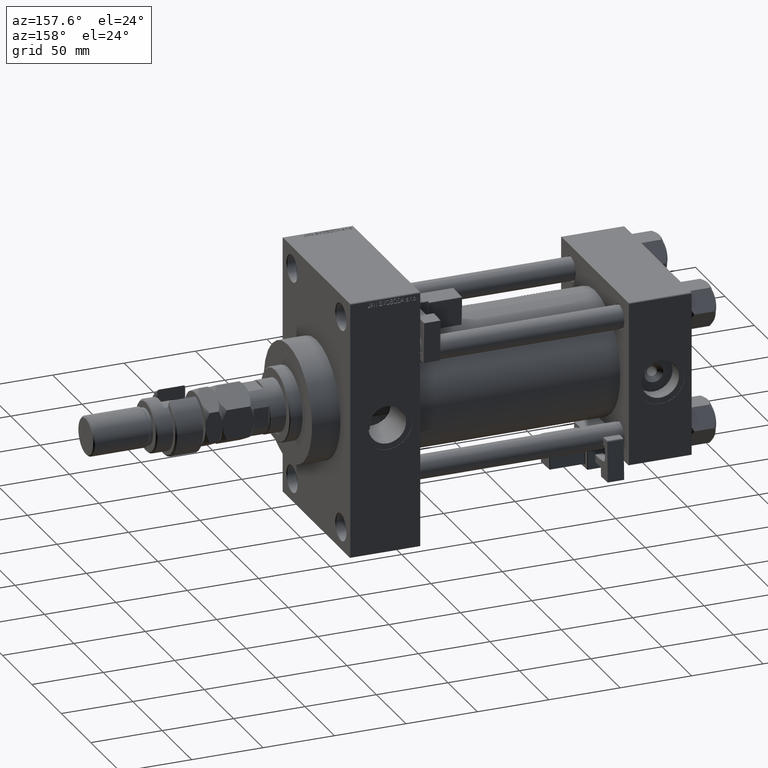
[diagram: clean part render]
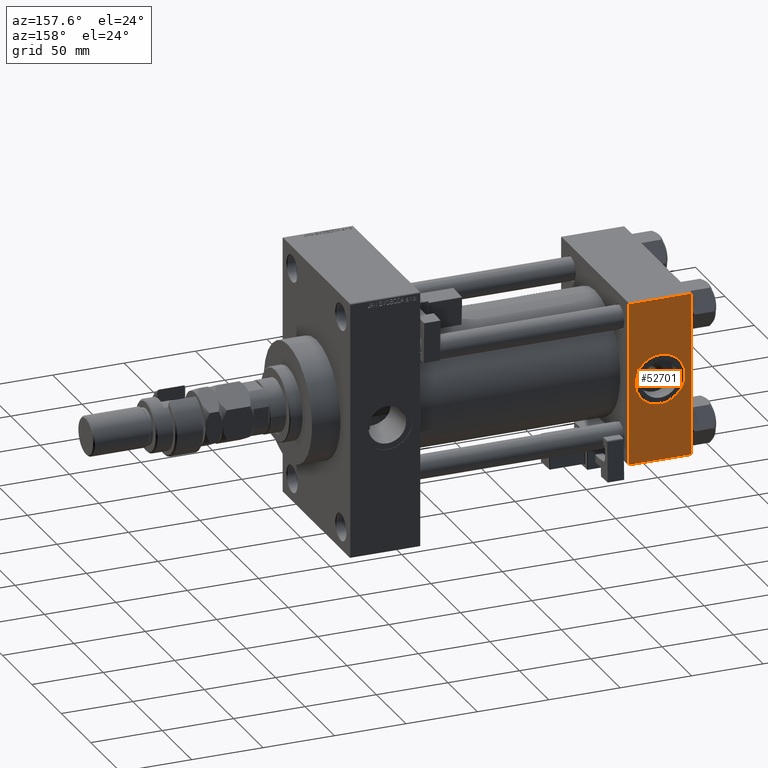
[diagram: same view with one face highlighted and labeled with its STEP entity id]
A machine part, auxiliary view. The second image highlights one B-rep face of the part: STEP entity #52701.
In plain terms, the highlighted planar face has unit normal (0, 1, 0).
Its self-contained STEP definition (entity closure, byte-faithful):
#713 = CARTESIAN_POINT ( 'NONE',  ( 22.00000000000000000, 57.49999999999999289, 0.000000000000000000 ) ) ;
#3839 = DIRECTION ( 'NONE',  ( 0.000000000000000000, 1.000000000000000000, 0.000000000000000000 ) ) ;
#4282 = EDGE_CURVE ( 'NONE', #34594, #9476, #19965, .T. ) ;
#5018 = AXIS2_PLACEMENT_3D ( 'NONE', #30701, #26855, #9758 ) ;
#7879 = VERTEX_POINT ( 'NONE', #43615 ) ;
#8937 = ORIENTED_EDGE ( 'NONE', *, *, #16766, .T. ) ;
#9046 = DIRECTION ( 'NONE',  ( 1.000000000000000000, 0.000000000000000000, 0.000000000000000000 ) ) ;
#9476 = VERTEX_POINT ( 'NONE', #12319 ) ;
#9758 = DIRECTION ( 'NONE',  ( 0.000000000000000000, -0.000000000000000000, 1.000000000000000000 ) ) ;
#10062 = EDGE_LOOP ( 'NONE', ( #16126, #17234 ) ) ;
#11383 = VERTEX_POINT ( 'NONE', #48796 ) ;
#12319 = CARTESIAN_POINT ( 'NONE',  ( 0.000000000000000000, 57.49999999999999289, -57.00000000000000711 ) ) ;
#13144 = DIRECTION ( 'NONE',  ( 0.000000000000000000, 0.000000000000000000, 1.000000000000000000 ) ) ;
#13888 = PLANE ( 'NONE',  #5018 ) ;
#14736 = EDGE_CURVE ( 'NONE', #11383, #9476, #47239, .T. ) ;
#16126 = ORIENTED_EDGE ( 'NONE', *, *, #53140, .F. ) ;
#16766 = EDGE_CURVE ( 'NONE', #47030, #11383, #32755, .T. ) ;
#16946 = CARTESIAN_POINT ( 'NONE',  ( 44.00000000000000000, 57.49999999999999289, -57.00000000000000711 ) ) ;
#17234 = ORIENTED_EDGE ( 'NONE', *, *, #27640, .F. ) ;
#19965 = LINE ( 'NONE', #45588, #52648 ) ;
#23970 = CARTESIAN_POINT ( 'NONE',  ( 22.00000000000000355, 57.49999999999999289, -17.50000000000000000 ) ) ;
#24818 = CARTESIAN_POINT ( 'NONE',  ( 22.00000000000000000, 57.49999999999999289, 0.000000000000000000 ) ) ;
#25083 = ORIENTED_EDGE ( 'NONE', *, *, #14736, .T. ) ;
#26832 = VECTOR ( 'NONE', #38960, 1000.000000000000000 ) ;
#26855 = DIRECTION ( 'NONE',  ( -0.000000000000000000, 1.000000000000000000, 0.000000000000000000 ) ) ;
#27248 = CIRCLE ( 'NONE', #49267, 17.50000000000000000 ) ;
#27640 = EDGE_CURVE ( 'NONE', #45340, #7879, #27248, .T. ) ;
#27795 = VECTOR ( 'NONE', #50688, 1000.000000000000000 ) ;
#30701 = CARTESIAN_POINT ( 'NONE',  ( 44.00000000000000000, 57.49999999999999289, 57.50000000000000711 ) ) ;
#32755 = LINE ( 'NONE', #46004, #27795 ) ;
#33181 = DIRECTION ( 'NONE',  ( 0.000000000000000000, 0.000000000000000000, -1.000000000000000000 ) ) ;
#34293 = CARTESIAN_POINT ( 'NONE',  ( 44.00000000000000000, 57.49999999999999289, 57.00000000000003553 ) ) ;
#34594 = VERTEX_POINT ( 'NONE', #43818 ) ;
#34730 = EDGE_LOOP ( 'NONE', ( #8937, #25083, #40630, #42904 ) ) ;
#36546 = DIRECTION ( 'NONE',  ( 0.000000000000000000, 0.000000000000000000, 1.000000000000000000 ) ) ;
#37990 = CARTESIAN_POINT ( 'NONE',  ( 44.00000000000000000, 57.49999999999999289, 57.00000000000003553 ) ) ;
#38314 = VECTOR ( 'NONE', #9046, 1000.000000000000000 ) ;
#38960 = DIRECTION ( 'NONE',  ( -1.000000000000000000, 0.000000000000000000, 0.000000000000000000 ) ) ;
#38968 = FACE_BOUND ( 'NONE', #10062, .T. ) ;
#40630 = ORIENTED_EDGE ( 'NONE', *, *, #4282, .F. ) ;
#41559 = LINE ( 'NONE', #37990, #38314 ) ;
#42904 = ORIENTED_EDGE ( 'NONE', *, *, #49158, .T. ) ;
#43615 = CARTESIAN_POINT ( 'NONE',  ( 22.00000000000000000, 57.49999999999999289, 17.50000000000000000 ) ) ;
#43818 = CARTESIAN_POINT ( 'NONE',  ( 0.000000000000000000, 57.49999999999999289, 57.00000000000003553 ) ) ;
#45340 = VERTEX_POINT ( 'NONE', #23970 ) ;
#45588 = CARTESIAN_POINT ( 'NONE',  ( 0.000000000000000000, 57.49999999999999289, 57.50000000000000711 ) ) ;
#46004 = CARTESIAN_POINT ( 'NONE',  ( 44.00000000000000000, 57.49999999999999289, 57.50000000000000711 ) ) ;
#47030 = VERTEX_POINT ( 'NONE', #34293 ) ;
#47239 = LINE ( 'NONE', #16946, #26832 ) ;
#47326 = CIRCLE ( 'NONE', #52595, 17.50000000000000000 ) ;
#48796 = CARTESIAN_POINT ( 'NONE',  ( 44.00000000000000000, 57.49999999999999289, -57.00000000000000711 ) ) ;
#49158 = EDGE_CURVE ( 'NONE', #34594, #47030, #41559, .T. ) ;
#49267 = AXIS2_PLACEMENT_3D ( 'NONE', #713, #54218, #13144 ) ;
#50688 = DIRECTION ( 'NONE',  ( 0.000000000000000000, 0.000000000000000000, -1.000000000000000000 ) ) ;
#51661 = FACE_OUTER_BOUND ( 'NONE', #34730, .T. ) ;
#52595 = AXIS2_PLACEMENT_3D ( 'NONE', #24818, #3839, #36546 ) ;
#52648 = VECTOR ( 'NONE', #33181, 1000.000000000000000 ) ;
#52701 = ADVANCED_FACE ( 'NONE', ( #38968, #51661 ), #13888, .T. ) ;
#53140 = EDGE_CURVE ( 'NONE', #7879, #45340, #47326, .T. ) ;
#54218 = DIRECTION ( 'NONE',  ( 0.000000000000000000, 1.000000000000000000, 0.000000000000000000 ) ) ;